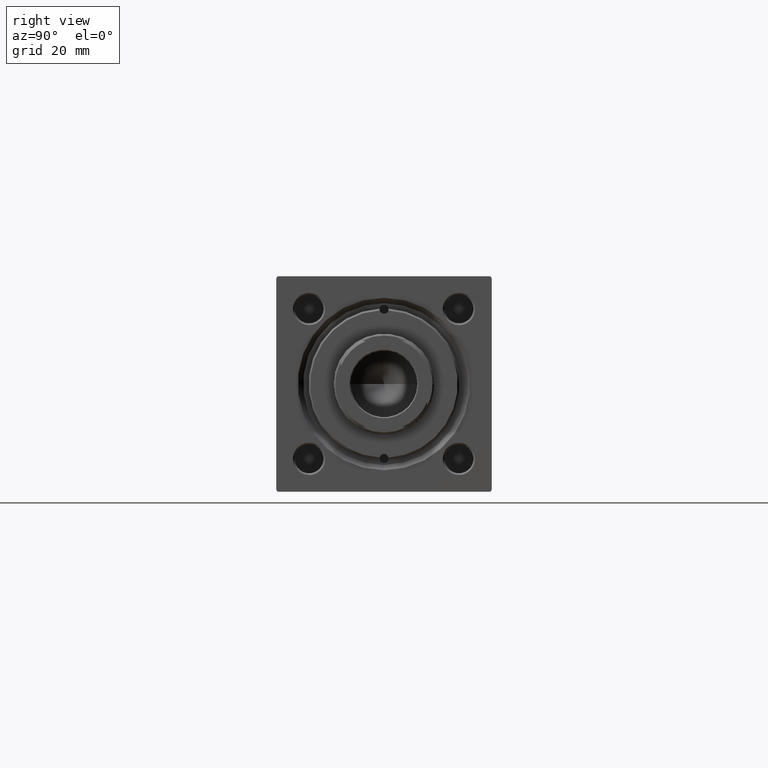
[diagram: clean part render]
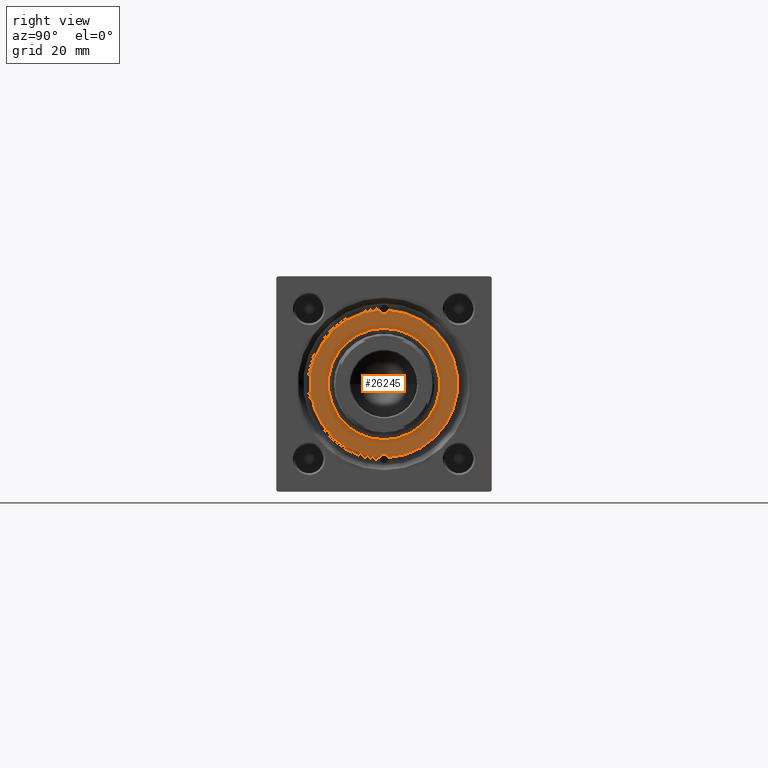
[diagram: same view with one face highlighted and labeled with its STEP entity id]
A machine part, right view. The second image highlights one B-rep face of the part: STEP entity #26245.
In plain terms, the highlighted planar face has unit normal (1, 0, 0).
Its self-contained STEP definition (entity closure, byte-faithful):
#207 = VERTEX_POINT ( 'NONE', #33296 ) ;
#831 = CARTESIAN_POINT ( 'NONE',  ( -20.75000000000000000, 0.000000000000000000, 40.70000000000000284 ) ) ;
#1227 = CARTESIAN_POINT ( 'NONE',  ( 0.000000000000000000, 0.000000000000000000, 40.70000000000000284 ) ) ;
#3148 = CARTESIAN_POINT ( 'NONE',  ( 20.46385542168674476, -1.216807823899045404, 40.70000000000000284 ) ) ;
#4126 = VERTEX_POINT ( 'NONE', #7316 ) ;
#4827 = AXIS2_PLACEMENT_3D ( 'NONE', #38303, #6922, #41900 ) ;
#4941 = ORIENTED_EDGE ( 'NONE', *, *, #13710, .F. ) ;
#6915 = DIRECTION ( 'NONE',  ( 0.000000000000000000, 0.000000000000000000, 1.000000000000000000 ) ) ;
#6922 = DIRECTION ( 'NONE',  ( -0.000000000000000000, -0.000000000000000000, 1.000000000000000000 ) ) ;
#7316 = CARTESIAN_POINT ( 'NONE',  ( 19.50000000000000000, 1.530808498934195022E-16, 40.70000000000000284 ) ) ;
#7871 = DIRECTION ( 'NONE',  ( 1.000000000000000000, 0.000000000000000000, 0.000000000000000000 ) ) ;
#8059 = VERTEX_POINT ( 'NONE', #16434 ) ;
#8179 = CIRCLE ( 'NONE', #22886, 1.250000000000001110 ) ;
#8767 = ORIENTED_EDGE ( 'NONE', *, *, #35485, .F. ) ;
#9309 = CARTESIAN_POINT ( 'NONE',  ( 15.50000000000000000, 0.000000000000000000, 40.70000000000000284 ) ) ;
#9457 = VERTEX_POINT ( 'NONE', #9309 ) ;
#10058 = AXIS2_PLACEMENT_3D ( 'NONE', #11267, #35266, #38841 ) ;
#10071 = ORIENTED_EDGE ( 'NONE', *, *, #49764, .T. ) ;
#10221 = EDGE_CURVE ( 'NONE', #8059, #48485, #21437, .T. ) ;
#11267 = CARTESIAN_POINT ( 'NONE',  ( 0.000000000000000000, 0.000000000000000000, 40.70000000000000284 ) ) ;
#12259 = CIRCLE ( 'NONE', #15533, 20.49999999999999645 ) ;
#12550 = AXIS2_PLACEMENT_3D ( 'NONE', #31166, #6915, #22740 ) ;
#13710 = EDGE_CURVE ( 'NONE', #14296, #9457, #17455, .T. ) ;
#14296 = VERTEX_POINT ( 'NONE', #19800 ) ;
#14355 = CIRCLE ( 'NONE', #29870, 15.50000000000000000 ) ;
#15098 = PLANE ( 'NONE',  #21703 ) ;
#15533 = AXIS2_PLACEMENT_3D ( 'NONE', #1227, #47672, #7871 ) ;
#16434 = CARTESIAN_POINT ( 'NONE',  ( -19.50000000000000000, 0.000000000000000000, 40.70000000000000284 ) ) ;
#16992 = DIRECTION ( 'NONE',  ( -0.000000000000000000, -0.000000000000000000, 1.000000000000000000 ) ) ;
#17269 = EDGE_LOOP ( 'NONE', ( #8767, #10071, #33266, #35808, #23623, #19971 ) ) ;
#17348 = AXIS2_PLACEMENT_3D ( 'NONE', #44289, #16992, #48113 ) ;
#17455 = CIRCLE ( 'NONE', #12550, 15.50000000000000000 ) ;
#19488 = DIRECTION ( 'NONE',  ( -0.000000000000000000, -0.000000000000000000, 1.000000000000000000 ) ) ;
#19800 = CARTESIAN_POINT ( 'NONE',  ( -15.50000000000000000, 1.898202538678397557E-15, 40.70000000000000284 ) ) ;
#19808 = CARTESIAN_POINT ( 'NONE',  ( -20.46385542168674476, -1.216807823899045626, 40.70000000000000284 ) ) ;
#19971 = ORIENTED_EDGE ( 'NONE', *, *, #10221, .F. ) ;
#21437 = CIRCLE ( 'NONE', #17348, 1.250000000000001110 ) ;
#21700 = DIRECTION ( 'NONE',  ( 1.000000000000000000, 0.000000000000000000, 0.000000000000000000 ) ) ;
#21703 = AXIS2_PLACEMENT_3D ( 'NONE', #37573, #41920, #23020 ) ;
#22740 = DIRECTION ( 'NONE',  ( 1.000000000000000000, 0.000000000000000000, 0.000000000000000000 ) ) ;
#22886 = AXIS2_PLACEMENT_3D ( 'NONE', #35120, #24156, #47611 ) ;
#23020 = DIRECTION ( 'NONE',  ( 1.000000000000000000, 0.000000000000000000, -0.000000000000000000 ) ) ;
#23623 = ORIENTED_EDGE ( 'NONE', *, *, #41878, .T. ) ;
#24156 = DIRECTION ( 'NONE',  ( -0.000000000000000000, -0.000000000000000000, 1.000000000000000000 ) ) ;
#25787 = CARTESIAN_POINT ( 'NONE',  ( 0.000000000000000000, 0.000000000000000000, 40.70000000000000284 ) ) ;
#26245 = ADVANCED_FACE ( 'NONE', ( #29693, #26371 ), #15098, .T. ) ;
#26371 = FACE_BOUND ( 'NONE', #26432, .T. ) ;
#26432 = EDGE_LOOP ( 'NONE', ( #42879, #4941 ) ) ;
#26761 = CIRCLE ( 'NONE', #40590, 1.250000000000001110 ) ;
#29693 = FACE_OUTER_BOUND ( 'NONE', #17269, .T. ) ;
#29862 = EDGE_CURVE ( 'NONE', #9457, #14296, #14355, .T. ) ;
#29870 = AXIS2_PLACEMENT_3D ( 'NONE', #25787, #40835, #21700 ) ;
#30349 = VERTEX_POINT ( 'NONE', #19808 ) ;
#31166 = CARTESIAN_POINT ( 'NONE',  ( 0.000000000000000000, 0.000000000000000000, 40.70000000000000284 ) ) ;
#32086 = CIRCLE ( 'NONE', #10058, 20.49999999999999645 ) ;
#33266 = ORIENTED_EDGE ( 'NONE', *, *, #41368, .F. ) ;
#33296 = CARTESIAN_POINT ( 'NONE',  ( 20.46385542168674476, 1.216807823899045626, 40.70000000000000284 ) ) ;
#35120 = CARTESIAN_POINT ( 'NONE',  ( 20.75000000000000000, 0.000000000000000000, 40.70000000000000284 ) ) ;
#35266 = DIRECTION ( 'NONE',  ( 0.000000000000000000, 0.000000000000000000, 1.000000000000000000 ) ) ;
#35296 = DIRECTION ( 'NONE',  ( 1.000000000000000000, 0.000000000000000000, 0.000000000000000000 ) ) ;
#35485 = EDGE_CURVE ( 'NONE', #30349, #8059, #26761, .T. ) ;
#35808 = ORIENTED_EDGE ( 'NONE', *, *, #38060, .F. ) ;
#37573 = CARTESIAN_POINT ( 'NONE',  ( 0.000000000000000000, 0.000000000000000000, 40.70000000000000284 ) ) ;
#38060 = EDGE_CURVE ( 'NONE', #207, #4126, #39887, .T. ) ;
#38303 = CARTESIAN_POINT ( 'NONE',  ( 20.75000000000000000, 0.000000000000000000, 40.70000000000000284 ) ) ;
#38841 = DIRECTION ( 'NONE',  ( 1.000000000000000000, 0.000000000000000000, 0.000000000000000000 ) ) ;
#39597 = VERTEX_POINT ( 'NONE', #3148 ) ;
#39887 = CIRCLE ( 'NONE', #4827, 1.250000000000001110 ) ;
#40590 = AXIS2_PLACEMENT_3D ( 'NONE', #831, #19488, #35296 ) ;
#40835 = DIRECTION ( 'NONE',  ( 0.000000000000000000, 0.000000000000000000, 1.000000000000000000 ) ) ;
#41368 = EDGE_CURVE ( 'NONE', #4126, #39597, #8179, .T. ) ;
#41878 = EDGE_CURVE ( 'NONE', #207, #48485, #12259, .T. ) ;
#41900 = DIRECTION ( 'NONE',  ( 1.000000000000000000, 0.000000000000000000, 0.000000000000000000 ) ) ;
#41920 = DIRECTION ( 'NONE',  ( 0.000000000000000000, 0.000000000000000000, 1.000000000000000000 ) ) ;
#42879 = ORIENTED_EDGE ( 'NONE', *, *, #29862, .F. ) ;
#44230 = CARTESIAN_POINT ( 'NONE',  ( -20.46385542168674476, 1.216807823899045404, 40.70000000000000284 ) ) ;
#44289 = CARTESIAN_POINT ( 'NONE',  ( -20.75000000000000000, 0.000000000000000000, 40.70000000000000284 ) ) ;
#47611 = DIRECTION ( 'NONE',  ( 1.000000000000000000, 0.000000000000000000, 0.000000000000000000 ) ) ;
#47672 = DIRECTION ( 'NONE',  ( 0.000000000000000000, 0.000000000000000000, 1.000000000000000000 ) ) ;
#48113 = DIRECTION ( 'NONE',  ( 1.000000000000000000, 0.000000000000000000, 0.000000000000000000 ) ) ;
#48485 = VERTEX_POINT ( 'NONE', #44230 ) ;
#49764 = EDGE_CURVE ( 'NONE', #30349, #39597, #32086, .T. ) ;